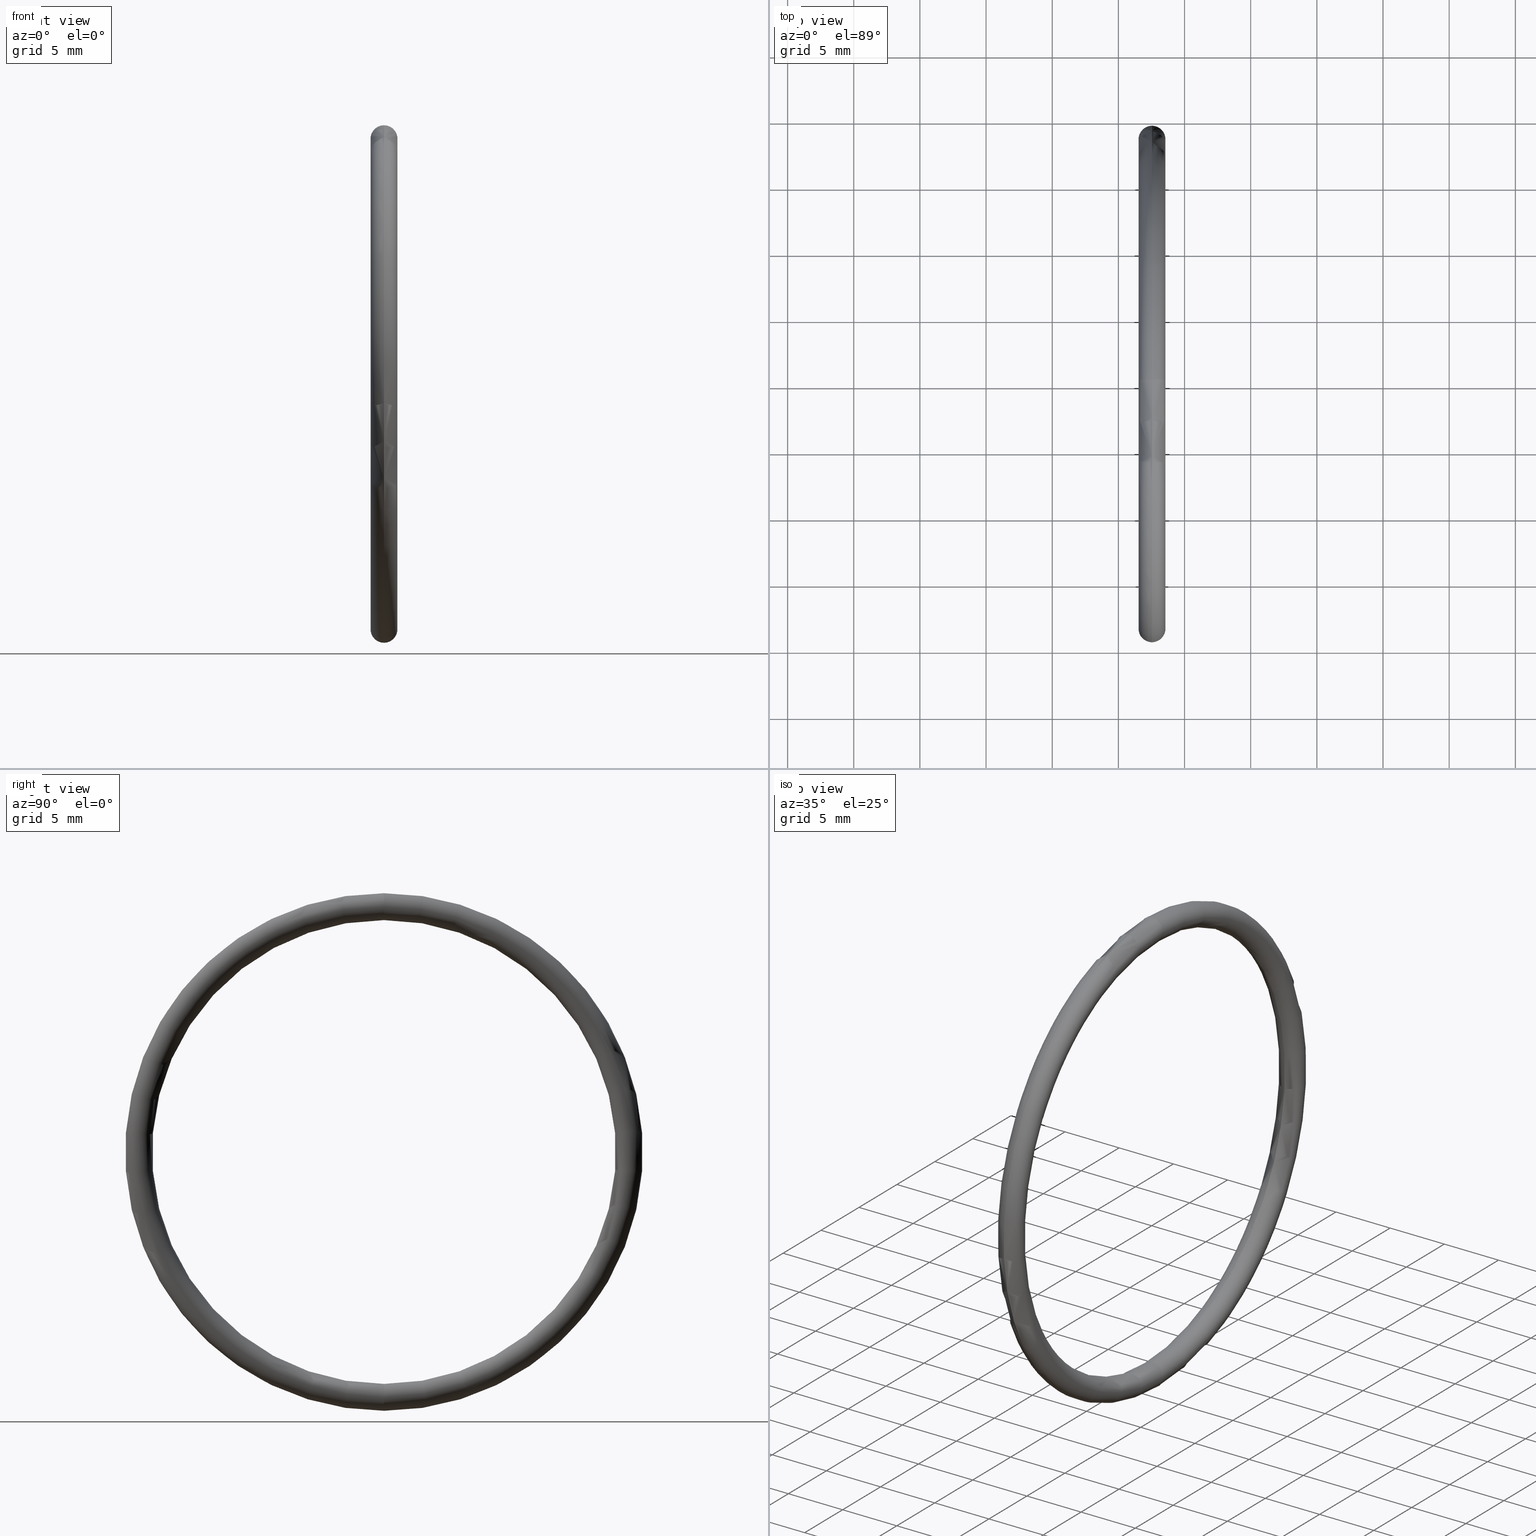
[diagram: canonical four-view strip — front | top / right | iso, engineering-drawing reading convention]
A machine part, canonical four-view strip (front | top / right | iso — engineering-drawing reading convention). The complete STEP part file that produces these views, byte-faithful:
ISO-10303-21;
HEADER;
FILE_DESCRIPTION (( 'STEP AP203' ),
    '1' );
FILE_NAME ('OM-40-VT.STEP',
    '2008-06-24T10:26:02',
    ( 'BSI05' ),
    ( 'BAYSTATE' ),
    'SwSTEP 2.0',
    'SolidWorks 2007',
    '' );
FILE_SCHEMA (( 'CONFIG_CONTROL_DESIGN' ));
ENDSEC;

DATA;
#1 = EDGE_CURVE ( 'NONE', #30, #25, #34, .T. ) ;
#2 = ORIENTED_EDGE ( 'NONE', *, *, #8, .F. ) ;
#3 = ORIENTED_EDGE ( 'NONE', *, *, #1, .T. ) ;
#4 = ORIENTED_EDGE ( 'NONE', *, *, #11, .T. ) ;
#5 = CLOSED_SHELL ( 'NONE', ( #29, #6, #23, #15 ) ) ;
#6 = ADVANCED_FACE ( 'NONE', ( #170 ), #161, .T. ) ;
#7 = EDGE_LOOP ( 'NONE', ( #40, #38, #18, #36 ) ) ;
#8 = EDGE_CURVE ( 'NONE', #30, #33, #43, .T. ) ;
#9 = EDGE_LOOP ( 'NONE', ( #26, #2, #3, #4 ) ) ;
#10 = EDGE_CURVE ( 'NONE', #33, #13, #47, .T. ) ;
#11 = EDGE_CURVE ( 'NONE', #25, #13, #194, .T. ) ;
#12 = EDGE_CURVE ( 'NONE', #13, #25, #129, .T. ) ;
#13 = VERTEX_POINT ( 'NONE', #178 ) ;
#14 = ORIENTED_EDGE ( 'NONE', *, *, #8, .T. ) ;
#15 = ADVANCED_FACE ( 'NONE', ( #177 ), #162, .T. ) ;
#16 = ORIENTED_EDGE ( 'NONE', *, *, #37, .T. ) ;
#17 = ORIENTED_EDGE ( 'NONE', *, *, #1, .F. ) ;
#18 = ORIENTED_EDGE ( 'NONE', *, *, #31, .T. ) ;
#19 = ORIENTED_EDGE ( 'NONE', *, *, #39, .F. ) ;
#20 = ORIENTED_EDGE ( 'NONE', *, *, #11, .F. ) ;
#21 = ORIENTED_EDGE ( 'NONE', *, *, #10, .T. ) ;
#22 = ORIENTED_EDGE ( 'NONE', *, *, #12, .T. ) ;
#23 = ADVANCED_FACE ( 'NONE', ( #157 ), #132, .T. ) ;
#24 = EDGE_LOOP ( 'NONE', ( #19, #20, #16, #14 ) ) ;
#25 = VERTEX_POINT ( 'NONE', #133 ) ;
#26 = ORIENTED_EDGE ( 'NONE', *, *, #10, .F. ) ;
#27 = MANIFOLD_SOLID_BREP ( 'NONE', #5 ) ;
#28 = EDGE_LOOP ( 'NONE', ( #32, #21, #22, #17 ) ) ;
#29 = ADVANCED_FACE ( 'NONE', ( #185 ), #54, .T. ) ;
#30 = VERTEX_POINT ( 'NONE', #72 ) ;
#31 = EDGE_CURVE ( 'NONE', #33, #30, #106, .T. ) ;
#32 = ORIENTED_EDGE ( 'NONE', *, *, #31, .F. ) ;
#33 = VERTEX_POINT ( 'NONE', #127 ) ;
#34 = CIRCLE ( 'NONE', #175, 0.6899999999999998400 ) ;
#35 = PRODUCT_RELATED_PRODUCT_CATEGORY ( 'detail', '', ( #51 ) ) ;
#36 = ORIENTED_EDGE ( 'NONE', *, *, #37, .F. ) ;
#37 = EDGE_CURVE ( 'NONE', #25, #30, #167, .T. ) ;
#38 = ORIENTED_EDGE ( 'NONE', *, *, #39, .T. ) ;
#39 = EDGE_CURVE ( 'NONE', #13, #33, #181, .T. ) ;
#40 = ORIENTED_EDGE ( 'NONE', *, *, #12, .F. ) ;
#41 = AXIS2_PLACEMENT_3D ( 'NONE', #169, #174, #48 ) ;
#42 = DIRECTION ( 'NONE',  ( 0.0000000000000000000, -1.224646799147351000E-016, 1.000000000000000000 ) ) ;
#43 = CIRCLE ( 'NONE', #124, 0.03999999999999998000 ) ;
#44 = CARTESIAN_POINT ( 'NONE',  ( 0.1000000000000000900, 0.0000000000000000000, 0.0000000000000000000 ) ) ;
#45 = DIRECTION ( 'NONE',  ( -1.000000000000000000, 0.0000000000000000000, 0.0000000000000000000 ) ) ;
#46 = AXIS2_PLACEMENT_3D ( 'NONE', #44, #45, #131 ) ;
#47 = CIRCLE ( 'NONE', #46, 0.7699999999999998000 ) ;
#48 = DIRECTION ( 'NONE',  ( 0.0000000000000000000, 0.0000000000000000000, 1.000000000000000000 ) ) ;
#49 = PERSON_AND_ORGANIZATION ( #50, #67 ) ;
#50 = PERSON ( 'UNSPECIFIED', 'UNSPECIFIED', 'UNSPECIFIED', ('UNSPECIFIED'), ('UNSPECIFIED'), ('UNSPECIFIED') ) ;
#51 = PRODUCT ( 'OM-40-VT', 'OM-40-VT', '', ( #52 ) ) ;
#52 = MECHANICAL_CONTEXT ( 'NONE', #153, 'mechanical' ) ;
#53 = APPLICATION_PROTOCOL_DEFINITION ( 'international standard', 'config_control_design', 1994, #153 ) ;
#54 = TOROIDAL_SURFACE ( 'NONE', #71, 0.7299999999999998700, 0.03999999999999997300 ) ;
#55 = CARTESIAN_POINT ( 'NONE',  ( 0.1000000000000000900, 0.0000000000000000000, 0.7299999999999998700 ) ) ;
#56 = APPROVAL_PERSON_ORGANIZATION ( #60, #58, #57 ) ;
#57 = APPROVAL_ROLE ( '' ) ;
#58 = APPROVAL ( #59, 'UNSPECIFIED' ) ;
#59 = APPROVAL_STATUS ( 'not_yet_approved' ) ;
#60 = PERSON_AND_ORGANIZATION ( #50, #67 ) ;
#61 = PRODUCT_DEFINITION ( 'UNKNOWN', '', #121, #62 ) ;
#62 = DESIGN_CONTEXT ( 'detailed design', #64, 'design' ) ;
#63 = APPLICATION_PROTOCOL_DEFINITION ( 'international standard', 'config_control_design', 1994, #64 ) ;
#64 = APPLICATION_CONTEXT ( 'configuration controlled 3d designs of mechanical parts and assemblies' ) ;
#65 = CC_DESIGN_PERSON_AND_ORGANIZATION_ASSIGNMENT ( #49, #66, ( #51 ) ) ;
#66 = PERSON_AND_ORGANIZATION_ROLE ( 'design_owner' ) ;
#67 = ORGANIZATION ( 'UNSPECIFIED', 'UNSPECIFIED', '' ) ;
#68 = DIRECTION ( 'NONE',  ( 0.0000000000000000000, 0.0000000000000000000, 1.000000000000000000 ) ) ;
#69 = DIRECTION ( 'NONE',  ( -1.000000000000000000, 0.0000000000000000000, 0.0000000000000000000 ) ) ;
#70 = CARTESIAN_POINT ( 'NONE',  ( 0.1000000000000000900, 0.0000000000000000000, 0.0000000000000000000 ) ) ;
#71 = AXIS2_PLACEMENT_3D ( 'NONE', #70, #69, #68 ) ;
#72 = CARTESIAN_POINT ( 'NONE',  ( 0.1000000000000000900, 8.450062914116736900E-017, -0.6899999999999998400 ) ) ;
#73 =( CONVERSION_BASED_UNIT ( 'INCH', #74 ) LENGTH_UNIT ( ) NAMED_UNIT ( #86 ) );
#74 = LENGTH_MEASURE_WITH_UNIT ( LENGTH_MEASURE( 0.02539999999999999900 ), #87 );
#75 = DATE_AND_TIME ( #148, #76 ) ;
#76 = LOCAL_TIME ( 15, 56, 2.000000000000000000, #77 ) ;
#77 = COORDINATED_UNIVERSAL_TIME_OFFSET ( 5, 30, .AHEAD. ) ;
#78 = CC_DESIGN_PERSON_AND_ORGANIZATION_ASSIGNMENT ( #80, #79, ( #81 ) ) ;
#79 = PERSON_AND_ORGANIZATION_ROLE ( 'classification_officer' ) ;
#80 = PERSON_AND_ORGANIZATION ( #50, #67 ) ;
#81 = SECURITY_CLASSIFICATION ( '', '', #82 ) ;
#82 = SECURITY_CLASSIFICATION_LEVEL ( 'unclassified' ) ;
#83 = CC_DESIGN_PERSON_AND_ORGANIZATION_ASSIGNMENT ( #85, #84, ( #121 ) ) ;
#84 = PERSON_AND_ORGANIZATION_ROLE ( 'design_supplier' ) ;
#85 = PERSON_AND_ORGANIZATION ( #50, #67 ) ;
#86 = DIMENSIONAL_EXPONENTS ( 1.000000000000000000, 0.0000000000000000000, 0.0000000000000000000, 0.0000000000000000000, 0.0000000000000000000, 0.0000000000000000000, 0.0000000000000000000 ) ;
#87 =( LENGTH_UNIT ( ) NAMED_UNIT ( * ) SI_UNIT ( $, .METRE. ) );
#88 = CC_DESIGN_DATE_AND_TIME_ASSIGNMENT ( #90, #89, ( #61 ) ) ;
#89 = DATE_TIME_ROLE ( 'creation_date' ) ;
#90 = DATE_AND_TIME ( #91, #92 ) ;
#91 = CALENDAR_DATE ( 2008, 24, 6 ) ;
#92 = LOCAL_TIME ( 15, 56, 2.000000000000000000, #93 ) ;
#93 = COORDINATED_UNIVERSAL_TIME_OFFSET ( 5, 30, .AHEAD. ) ;
#94 = CC_DESIGN_PERSON_AND_ORGANIZATION_ASSIGNMENT ( #96, #95, ( #61 ) ) ;
#95 = PERSON_AND_ORGANIZATION_ROLE ( 'creator' ) ;
#96 = PERSON_AND_ORGANIZATION ( #50, #67 ) ;
#97 = CC_DESIGN_APPROVAL ( #58, ( #61 ) ) ;
#98 = APPROVAL_DATE_TIME ( #99, #58 ) ;
#99 = DATE_AND_TIME ( #100, #101 ) ;
#100 = CALENDAR_DATE ( 2008, 24, 6 ) ;
#101 = LOCAL_TIME ( 15, 56, 2.000000000000000000, #102 ) ;
#102 = COORDINATED_UNIVERSAL_TIME_OFFSET ( 5, 30, .AHEAD. ) ;
#103 = DIRECTION ( 'NONE',  ( 0.0000000000000000000, 1.000000000000000000, 1.224646799147353200E-016 ) ) ;
#104 = CARTESIAN_POINT ( 'NONE',  ( 0.1000000000000000900, 8.939921633775677100E-017, -0.7299999999999998700 ) ) ;
#105 = AXIS2_PLACEMENT_3D ( 'NONE', #104, #103, #128 ) ;
#106 = CIRCLE ( 'NONE', #105, 0.03999999999999998000 ) ;
#107 = CC_DESIGN_PERSON_AND_ORGANIZATION_ASSIGNMENT ( #109, #108, ( #121 ) ) ;
#108 = PERSON_AND_ORGANIZATION_ROLE ( 'creator' ) ;
#109 = PERSON_AND_ORGANIZATION ( #50, #67 ) ;
#110 = CC_DESIGN_APPROVAL ( #118, ( #121 ) ) ;
#111 = APPROVAL_DATE_TIME ( #112, #118 ) ;
#112 = DATE_AND_TIME ( #113, #114 ) ;
#113 = CALENDAR_DATE ( 2008, 24, 6 ) ;
#114 = LOCAL_TIME ( 15, 56, 2.000000000000000000, #115 ) ;
#115 = COORDINATED_UNIVERSAL_TIME_OFFSET ( 5, 30, .AHEAD. ) ;
#116 = APPROVAL_PERSON_ORGANIZATION ( #120, #118, #117 ) ;
#117 = APPROVAL_ROLE ( '' ) ;
#118 = APPROVAL ( #119, 'UNSPECIFIED' ) ;
#119 = APPROVAL_STATUS ( 'not_yet_approved' ) ;
#120 = PERSON_AND_ORGANIZATION ( #50, #67 ) ;
#121 = PRODUCT_DEFINITION_FORMATION_WITH_SPECIFIED_SOURCE ( 'ANY', '', #51, .NOT_KNOWN. ) ;
#122 = DIRECTION ( 'NONE',  ( 0.0000000000000000000, 1.000000000000000000, 1.224646799147353200E-016 ) ) ;
#123 = CARTESIAN_POINT ( 'NONE',  ( 0.1000000000000000900, 8.939921633775677100E-017, -0.7299999999999998700 ) ) ;
#124 = AXIS2_PLACEMENT_3D ( 'NONE', #123, #122, #42 ) ;
#125 =( NAMED_UNIT ( * ) SI_UNIT ( $, .STERADIAN. ) SOLID_ANGLE_UNIT ( ) );
#126 =( NAMED_UNIT ( * ) PLANE_ANGLE_UNIT ( ) SI_UNIT ( $, .RADIAN. ) );
#127 = CARTESIAN_POINT ( 'NONE',  ( 0.1000000000000000900, 9.429780353434617300E-017, -0.7699999999999996800 ) ) ;
#128 = DIRECTION ( 'NONE',  ( 0.0000000000000000000, -1.224646799147351000E-016, 1.000000000000000000 ) ) ;
#129 = CIRCLE ( 'NONE', #191, 0.03999999999999998000 ) ;
#130 = DIRECTION ( 'NONE',  ( 0.0000000000000000000, 0.0000000000000000000, -1.000000000000000000 ) ) ;
#131 = DIRECTION ( 'NONE',  ( 0.0000000000000000000, 0.0000000000000000000, 1.000000000000000000 ) ) ;
#132 = TOROIDAL_SURFACE ( 'NONE', #179, 0.7299999999999998700, 0.03999999999999997300 ) ;
#133 = CARTESIAN_POINT ( 'NONE',  ( 0.1000000000000000900, 0.0000000000000000000, 0.6899999999999998400 ) ) ;
#134 = CC_DESIGN_SECURITY_CLASSIFICATION ( #81, ( #121 ) ) ;
#135 = CC_DESIGN_APPROVAL ( #143, ( #81 ) ) ;
#136 = APPROVAL_DATE_TIME ( #137, #143 ) ;
#137 = DATE_AND_TIME ( #138, #139 ) ;
#138 = CALENDAR_DATE ( 2008, 24, 6 ) ;
#139 = LOCAL_TIME ( 15, 56, 2.000000000000000000, #140 ) ;
#140 = COORDINATED_UNIVERSAL_TIME_OFFSET ( 5, 30, .AHEAD. ) ;
#141 = APPROVAL_PERSON_ORGANIZATION ( #145, #143, #142 ) ;
#142 = APPROVAL_ROLE ( '' ) ;
#143 = APPROVAL ( #144, 'UNSPECIFIED' ) ;
#144 = APPROVAL_STATUS ( 'not_yet_approved' ) ;
#145 = PERSON_AND_ORGANIZATION ( #50, #67 ) ;
#146 = CC_DESIGN_DATE_AND_TIME_ASSIGNMENT ( #75, #147, ( #81 ) ) ;
#147 = DATE_TIME_ROLE ( 'classification_date' ) ;
#148 = CALENDAR_DATE ( 2008, 24, 6 ) ;
#149 = ADVANCED_BREP_SHAPE_REPRESENTATION ( 'OM-40-VT', ( #27, #152 ), #150 ) ;
#150 =( GEOMETRIC_REPRESENTATION_CONTEXT ( 3 ) GLOBAL_UNCERTAINTY_ASSIGNED_CONTEXT ( ( #183 ) ) GLOBAL_UNIT_ASSIGNED_CONTEXT ( ( #73, #126, #125 ) ) REPRESENTATION_CONTEXT ( 'NONE', 'WORKASPACE' ) );
#151 = DIRECTION ( 'NONE',  ( 1.000000000000000000, 0.0000000000000000000, 0.0000000000000000000 ) ) ;
#152 = AXIS2_PLACEMENT_3D ( 'NONE', #184, #182, #151 ) ;
#153 = APPLICATION_CONTEXT ( 'configuration controlled 3d designs of mechanical parts and assemblies' ) ;
#154 = DIRECTION ( 'NONE',  ( 0.0000000000000000000, 0.0000000000000000000, 1.000000000000000000 ) ) ;
#155 = DIRECTION ( 'NONE',  ( -1.000000000000000000, 0.0000000000000000000, 0.0000000000000000000 ) ) ;
#156 = CARTESIAN_POINT ( 'NONE',  ( 0.1000000000000000900, 0.0000000000000000000, 0.0000000000000000000 ) ) ;
#157 = FACE_OUTER_BOUND ( 'NONE', #24, .T. ) ;
#158 = CARTESIAN_POINT ( 'NONE',  ( 0.1000000000000000900, 0.0000000000000000000, 0.0000000000000000000 ) ) ;
#159 = DIRECTION ( 'NONE',  ( -1.000000000000000000, 0.0000000000000000000, 0.0000000000000000000 ) ) ;
#160 = DIRECTION ( 'NONE',  ( 0.0000000000000000000, 0.0000000000000000000, 1.000000000000000000 ) ) ;
#161 = TOROIDAL_SURFACE ( 'NONE', #41, 0.7299999999999998700, 0.03999999999999997300 ) ;
#162 = TOROIDAL_SURFACE ( 'NONE', #176, 0.7299999999999998700, 0.03999999999999997300 ) ;
#163 = DIRECTION ( 'NONE',  ( 0.0000000000000000000, 0.0000000000000000000, 1.000000000000000000 ) ) ;
#164 = DIRECTION ( 'NONE',  ( -1.000000000000000000, 0.0000000000000000000, 0.0000000000000000000 ) ) ;
#165 = CARTESIAN_POINT ( 'NONE',  ( 0.1000000000000000900, 0.0000000000000000000, 0.0000000000000000000 ) ) ;
#166 = AXIS2_PLACEMENT_3D ( 'NONE', #165, #164, #163 ) ;
#167 = CIRCLE ( 'NONE', #166, 0.6899999999999998400 ) ;
#168 = CARTESIAN_POINT ( 'NONE',  ( 0.1000000000000000900, 0.0000000000000000000, 0.0000000000000000000 ) ) ;
#169 = CARTESIAN_POINT ( 'NONE',  ( 0.1000000000000000900, 0.0000000000000000000, 0.0000000000000000000 ) ) ;
#170 = FACE_OUTER_BOUND ( 'NONE', #7, .T. ) ;
#171 = DIRECTION ( 'NONE',  ( 0.0000000000000000000, 0.0000000000000000000, 1.000000000000000000 ) ) ;
#172 = DIRECTION ( 'NONE',  ( -1.000000000000000000, 0.0000000000000000000, 0.0000000000000000000 ) ) ;
#173 = AXIS2_PLACEMENT_3D ( 'NONE', #168, #172, #171 ) ;
#174 = DIRECTION ( 'NONE',  ( -1.000000000000000000, 0.0000000000000000000, 0.0000000000000000000 ) ) ;
#175 = AXIS2_PLACEMENT_3D ( 'NONE', #158, #159, #160 ) ;
#176 = AXIS2_PLACEMENT_3D ( 'NONE', #156, #155, #154 ) ;
#177 = FACE_OUTER_BOUND ( 'NONE', #9, .T. ) ;
#178 = CARTESIAN_POINT ( 'NONE',  ( 0.1000000000000000900, 0.0000000000000000000, 0.7699999999999996800 ) ) ;
#179 = AXIS2_PLACEMENT_3D ( 'NONE', #180, #187, #186 ) ;
#180 = CARTESIAN_POINT ( 'NONE',  ( 0.1000000000000000900, 0.0000000000000000000, 0.0000000000000000000 ) ) ;
#181 = CIRCLE ( 'NONE', #173, 0.7699999999999998000 ) ;
#182 = DIRECTION ( 'NONE',  ( 0.0000000000000000000, 0.0000000000000000000, 1.000000000000000000 ) ) ;
#183 = UNCERTAINTY_MEASURE_WITH_UNIT (LENGTH_MEASURE( 1.000000000000000100E-005 ), #73, 'distance_accuracy_value', 'NONE');
#184 = CARTESIAN_POINT ( 'NONE',  ( 0.0000000000000000000, 0.0000000000000000000, 0.0000000000000000000 ) ) ;
#185 = FACE_OUTER_BOUND ( 'NONE', #28, .T. ) ;
#186 = DIRECTION ( 'NONE',  ( 0.0000000000000000000, 0.0000000000000000000, 1.000000000000000000 ) ) ;
#187 = DIRECTION ( 'NONE',  ( -1.000000000000000000, 0.0000000000000000000, 0.0000000000000000000 ) ) ;
#188 = DIRECTION ( 'NONE',  ( 0.0000000000000000000, 0.0000000000000000000, -1.000000000000000000 ) ) ;
#189 = DIRECTION ( 'NONE',  ( 0.0000000000000000000, -1.000000000000000000, 0.0000000000000000000 ) ) ;
#190 = CARTESIAN_POINT ( 'NONE',  ( 0.1000000000000000900, 0.0000000000000000000, 0.7299999999999998700 ) ) ;
#191 = AXIS2_PLACEMENT_3D ( 'NONE', #190, #189, #188 ) ;
#192 = DIRECTION ( 'NONE',  ( 0.0000000000000000000, -1.000000000000000000, 0.0000000000000000000 ) ) ;
#193 = AXIS2_PLACEMENT_3D ( 'NONE', #55, #192, #130 ) ;
#194 = CIRCLE ( 'NONE', #193, 0.03999999999999998000 ) ;
#195 = SHAPE_DEFINITION_REPRESENTATION ( #196, #149 ) ;
#196 = PRODUCT_DEFINITION_SHAPE ( 'NONE', 'NONE',  #61 ) ;
ENDSEC;
END-ISO-10303-21;
